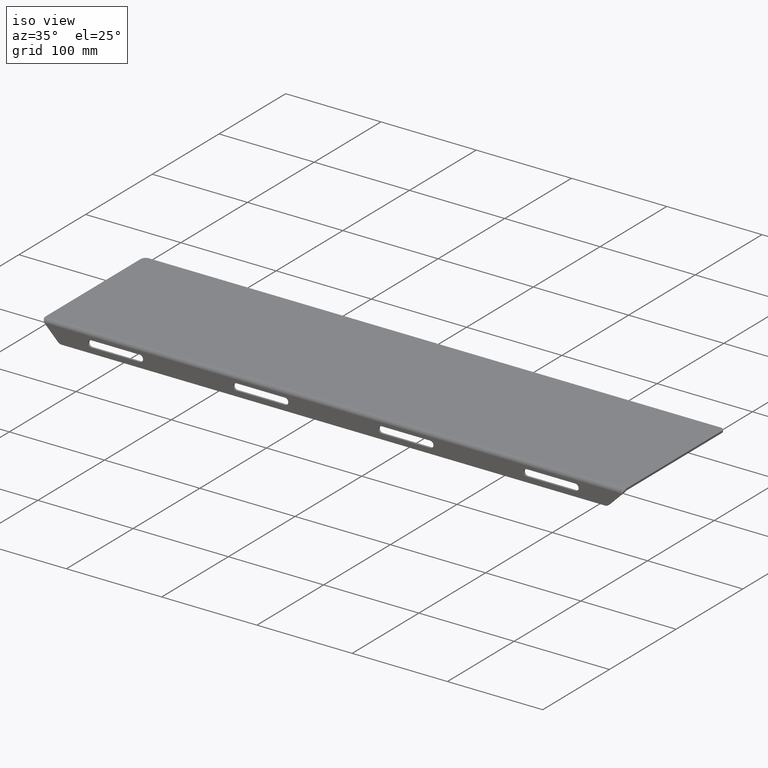
[diagram: clean part render]
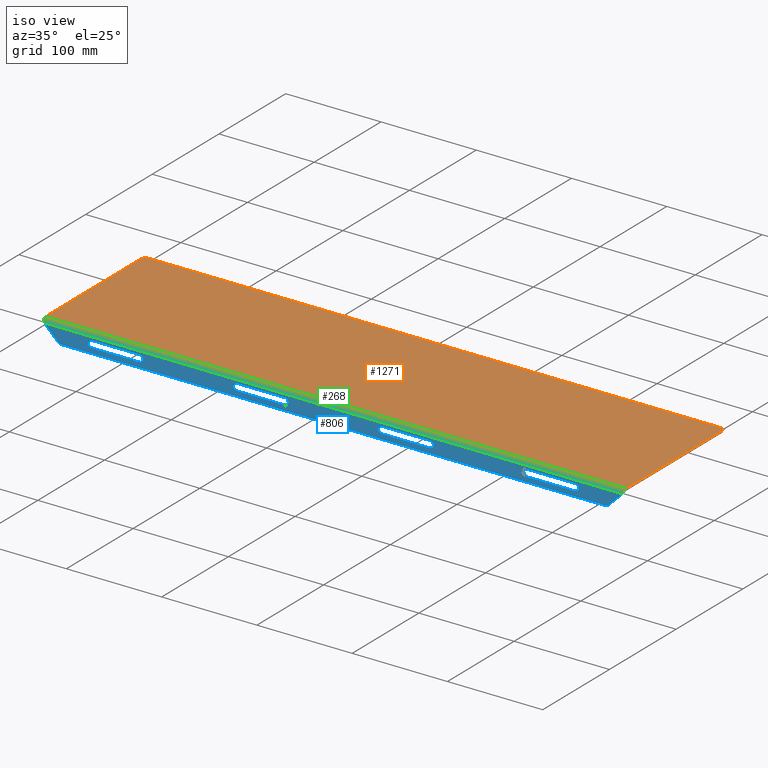
[diagram: same view with three faces highlighted in distinct colors, each labeled with its STEP entity id]
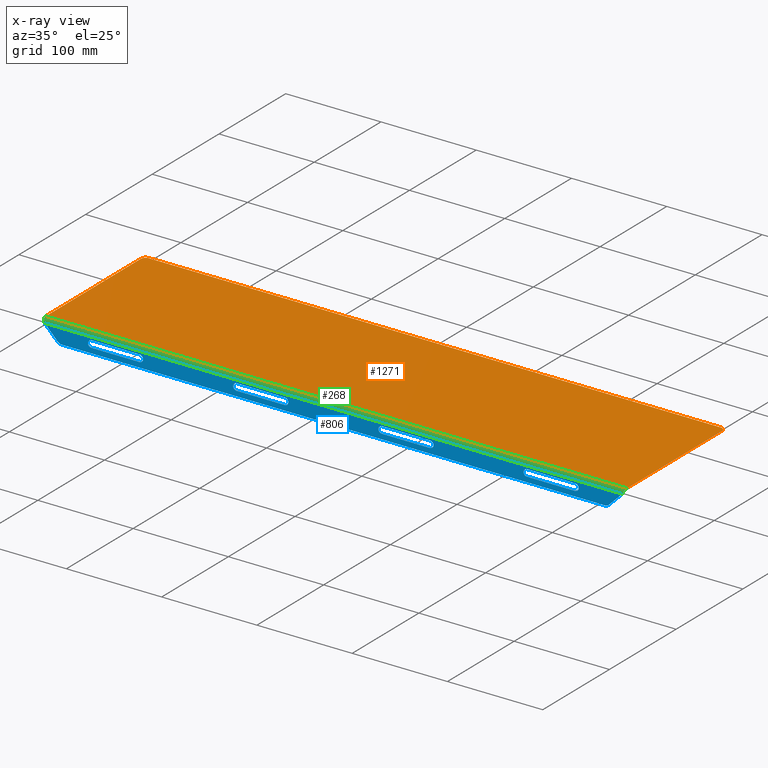
[diagram: x-ray of the same camera — body ghosted, the three highlighted faces saturated]
A machine part, iso view with three faces highlighted in distinct colors.
The next image is the same camera in x-ray (body ghosted, the three faces saturated) — at least one of them is partly hidden behind the body in this view.
Their STEP definitions:

[orange] entity #1271 — the highlighted planar face has unit normal (0, 0, -1).
#31 = VERTEX_POINT ( 'NONE', #153 ) ;
#44 = EDGE_CURVE ( 'NONE', #550, #31, #619, .T. ) ;
#50 = DIRECTION ( 'NONE',  ( -1.000000000000000000, -0.000000000000000000, -0.000000000000000000 ) ) ;
#72 = EDGE_CURVE ( 'NONE', #31, #744, #1035, .T. ) ;
#81 = FACE_OUTER_BOUND ( 'NONE', #318, .T. ) ;
#89 = CARTESIAN_POINT ( 'NONE',  ( -72.96811685823827531, 258.4215033607173382, 467.0621721913454962 ) ) ;
#153 = CARTESIAN_POINT ( 'NONE',  ( -67.96811685823823268, 406.4215033607170540, 467.0621721913454962 ) ) ;
#232 = AXIS2_PLACEMENT_3D ( 'NONE', #934, #1267, #275 ) ;
#253 = EDGE_CURVE ( 'NONE', #623, #939, #790, .T. ) ;
#260 = AXIS2_PLACEMENT_3D ( 'NONE', #379, #911, #485 ) ;
#275 = DIRECTION ( 'NONE',  ( 1.000000000000000000, 0.000000000000000000, 0.000000000000000000 ) ) ;
#281 = CIRCLE ( 'NONE', #232, 5.000000000000004441 ) ;
#296 = EDGE_CURVE ( 'NONE', #1415, #623, #813, .T. ) ;
#314 = EDGE_CURVE ( 'NONE', #939, #550, #690, .T. ) ;
#318 = EDGE_LOOP ( 'NONE', ( #533, #865, #784, #1159, #766, #1387 ) ) ;
#325 = EDGE_CURVE ( 'NONE', #744, #1415, #281, .T. ) ;
#337 = CARTESIAN_POINT ( 'NONE',  ( 536.8318831417617503, 254.4215033607171108, 467.0621721913454962 ) ) ;
#378 = DIRECTION ( 'NONE',  ( -0.000000000000000000, 1.000000000000000000, -0.000000000000000000 ) ) ;
#379 = CARTESIAN_POINT ( 'NONE',  ( -67.96811685823826110, 401.4215033607169971, 467.0621721913454962 ) ) ;
#423 = CARTESIAN_POINT ( 'NONE',  ( 537.0318831417617957, 258.4215033607173382, 467.0621721913454962 ) ) ;
#442 = VECTOR ( 'NONE', #796, 1000.000000000000000 ) ;
#477 = CARTESIAN_POINT ( 'NONE',  ( 536.8318831417617503, 258.4215033607171108, 467.0621721913454962 ) ) ;
#485 = DIRECTION ( 'NONE',  ( -1.000000000000000000, 0.000000000000000000, 0.000000000000000000 ) ) ;
#533 = ORIENTED_EDGE ( 'NONE', *, *, #253, .F. ) ;
#536 = CARTESIAN_POINT ( 'NONE',  ( -72.96811685823827531, 401.4215033607169971, 467.0621721913454962 ) ) ;
#550 = VERTEX_POINT ( 'NONE', #536 ) ;
#619 = CIRCLE ( 'NONE', #260, 5.000000000000004441 ) ;
#623 = VERTEX_POINT ( 'NONE', #423 ) ;
#690 = LINE ( 'NONE', #1362, #1136 ) ;
#714 = CARTESIAN_POINT ( 'NONE',  ( -67.96811685823823268, 406.4215033607170540, 467.0621721913454962 ) ) ;
#744 = VERTEX_POINT ( 'NONE', #816 ) ;
#762 = DIRECTION ( 'NONE',  ( 0.000000000000000000, 0.000000000000000000, -1.000000000000000000 ) ) ;
#766 = ORIENTED_EDGE ( 'NONE', *, *, #44, .F. ) ;
#784 = ORIENTED_EDGE ( 'NONE', *, *, #325, .F. ) ;
#789 = CARTESIAN_POINT ( 'NONE',  ( 537.0318831417617957, 401.4215033607169971, 467.0621721913454962 ) ) ;
#790 = LINE ( 'NONE', #477, #1294 ) ;
#796 = DIRECTION ( 'NONE',  ( 0.000000000000000000, -1.000000000000000000, 0.000000000000000000 ) ) ;
#813 = LINE ( 'NONE', #818, #442 ) ;
#816 = CARTESIAN_POINT ( 'NONE',  ( 532.0318831417617957, 406.4215033607170540, 467.0621721913454962 ) ) ;
#818 = CARTESIAN_POINT ( 'NONE',  ( 537.0318831417617957, 401.4215033607169971, 467.0621721913454962 ) ) ;
#865 = ORIENTED_EDGE ( 'NONE', *, *, #296, .F. ) ;
#911 = DIRECTION ( 'NONE',  ( -0.000000000000000000, -0.000000000000000000, -1.000000000000000000 ) ) ;
#934 = CARTESIAN_POINT ( 'NONE',  ( 532.0318831417617957, 401.4215033607169971, 467.0621721913454962 ) ) ;
#939 = VERTEX_POINT ( 'NONE', #89 ) ;
#985 = AXIS2_PLACEMENT_3D ( 'NONE', #337, #762, #1218 ) ;
#1035 = LINE ( 'NONE', #714, #1109 ) ;
#1109 = VECTOR ( 'NONE', #1157, 1000.000000000000000 ) ;
#1136 = VECTOR ( 'NONE', #378, 1000.000000000000000 ) ;
#1157 = DIRECTION ( 'NONE',  ( 1.000000000000000000, 0.000000000000000000, 0.000000000000000000 ) ) ;
#1159 = ORIENTED_EDGE ( 'NONE', *, *, #72, .F. ) ;
#1218 = DIRECTION ( 'NONE',  ( -1.000000000000000000, 0.000000000000000000, -0.000000000000000000 ) ) ;
#1267 = DIRECTION ( 'NONE',  ( -0.000000000000000000, -0.000000000000000000, -1.000000000000000000 ) ) ;
#1271 = ADVANCED_FACE ( 'NONE', ( #81 ), #1290, .F. ) ;
#1290 = PLANE ( 'NONE',  #985 ) ;
#1294 = VECTOR ( 'NONE', #50, 1000.000000000000000 ) ;
#1362 = CARTESIAN_POINT ( 'NONE',  ( -72.96811685823827531, 401.4215033607169971, 467.0621721913454962 ) ) ;
#1387 = ORIENTED_EDGE ( 'NONE', *, *, #314, .F. ) ;
#1415 = VERTEX_POINT ( 'NONE', #789 ) ;

[blue] entity #806 — the highlighted planar face has unit normal (-0, 1, 0).
#16 = DIRECTION ( 'NONE',  ( 0.000000000000000000, -1.000000000000000000, -0.000000000000000000 ) ) ;
#18 = VERTEX_POINT ( 'NONE', #1263 ) ;
#20 = DIRECTION ( 'NONE',  ( -1.000000000000000000, 0.000000000000000000, 0.000000000000000000 ) ) ;
#23 = CARTESIAN_POINT ( 'NONE',  ( -53.40415582755922230, 254.4215033607171108, 452.0621721913454962 ) ) ;
#24 = ORIENTED_EDGE ( 'NONE', *, *, #65, .F. ) ;
#27 = DIRECTION ( 'NONE',  ( 2.379049338482476317E-14, 0.000000000000000000, 1.000000000000000000 ) ) ;
#35 = PLANE ( 'NONE',  #968 ) ;
#37 = CIRCLE ( 'NONE', #965, 3.500000000000003109 ) ;
#38 = VECTOR ( 'NONE', #273, 1000.000000000000000 ) ;
#48 = DIRECTION ( 'NONE',  ( 0.000000000000000000, -1.000000000000000000, -0.000000000000000000 ) ) ;
#61 = VERTEX_POINT ( 'NONE', #814 ) ;
#65 = EDGE_CURVE ( 'NONE', #659, #944, #276, .T. ) ;
#70 = ORIENTED_EDGE ( 'NONE', *, *, #1287, .F. ) ;
#74 = CARTESIAN_POINT ( 'NONE',  ( 28.83188314176168987, 254.4215033607171108, 452.5621721913454962 ) ) ;
#78 = VECTOR ( 'NONE', #360, 1000.000000000000000 ) ;
#80 = CARTESIAN_POINT ( 'NONE',  ( 333.6318831417617616, 254.4215033607171108, 452.5621721913454962 ) ) ;
#93 = AXIS2_PLACEMENT_3D ( 'NONE', #306, #844, #1276 ) ;
#95 = AXIS2_PLACEMENT_3D ( 'NONE', #680, #139, #27 ) ;
#105 = ORIENTED_EDGE ( 'NONE', *, *, #1190, .F. ) ;
#117 = ORIENTED_EDGE ( 'NONE', *, *, #713, .F. ) ;
#122 = CARTESIAN_POINT ( 'NONE',  ( 435.2318831417617844, 254.4215033607171108, 459.5621721913454962 ) ) ;
#135 = CARTESIAN_POINT ( 'NONE',  ( 535.2428591232272765, 254.4215033607171108, 462.7660413916245830 ) ) ;
#139 = DIRECTION ( 'NONE',  ( 0.000000000000000000, -1.000000000000000000, -0.000000000000000000 ) ) ;
#142 = FACE_BOUND ( 'NONE', #358, .T. ) ;
#150 = CARTESIAN_POINT ( 'NONE',  ( 130.4318831417616877, 254.4215033607171108, 452.5621721913454962 ) ) ;
#156 = DIRECTION ( 'NONE',  ( 0.000000000000000000, -1.000000000000000000, -0.000000000000000000 ) ) ;
#158 = VERTEX_POINT ( 'NONE', #1277 ) ;
#161 = CARTESIAN_POINT ( 'NONE',  ( 130.4318831417616877, 254.4215033607171108, 459.5621721913454962 ) ) ;
#172 = CARTESIAN_POINT ( 'NONE',  ( 130.4318831417616877, 254.4215033607171108, 456.0621721913454962 ) ) ;
#179 = CARTESIAN_POINT ( 'NONE',  ( 333.6318831417617616, 254.4215033607171108, 456.0621721913454962 ) ) ;
#190 = CIRCLE ( 'NONE', #1413, 3.500000000000003109 ) ;
#193 = CARTESIAN_POINT ( 'NONE',  ( 282.8318831417618071, 254.4215033607171108, 452.5621721913454962 ) ) ;
#199 = EDGE_CURVE ( 'NONE', #1200, #433, #1285, .T. ) ;
#202 = ORIENTED_EDGE ( 'NONE', *, *, #1069, .F. ) ;
#220 = VERTEX_POINT ( 'NONE', #622 ) ;
#252 = B_SPLINE_CURVE_WITH_KNOTS ( 'NONE', 3,
 ( #451, #1335, #341, #778 ),
 .UNSPECIFIED., .F., .F.,
 ( 4, 4 ),
 ( 0.000000000000000000, 0.0003310733937462970481 ),
 .UNSPECIFIED. ) ;
#255 = LINE ( 'NONE', #1023, #734 ) ;
#258 = LINE ( 'NONE', #490, #38 ) ;
#264 = EDGE_LOOP ( 'NONE', ( #756, #1006, #70, #1079, #920, #1358, #637, #1350 ) ) ;
#266 = CARTESIAN_POINT ( 'NONE',  ( 536.8318831417617503, 254.4215033607171108, 467.0621721913454962 ) ) ;
#272 = CARTESIAN_POINT ( 'NONE',  ( 486.0318831417617389, 254.4215033607171108, 452.5621721913454962 ) ) ;
#273 = DIRECTION ( 'NONE',  ( -1.000000000000000000, 0.000000000000000000, 0.000000000000000000 ) ) ;
#276 = LINE ( 'NONE', #161, #929 ) ;
#277 = VERTEX_POINT ( 'NONE', #497 ) ;
#278 = CARTESIAN_POINT ( 'NONE',  ( 435.2318831417617844, 254.4215033607171108, 459.5621721913454962 ) ) ;
#298 = DIRECTION ( 'NONE',  ( 0.7071067811865501263, -0.000000000000000000, 0.7071067811865450192 ) ) ;
#299 = AXIS2_PLACEMENT_3D ( 'NONE', #172, #16, #998 ) ;
#301 = ORIENTED_EDGE ( 'NONE', *, *, #654, .F. ) ;
#306 = CARTESIAN_POINT ( 'NONE',  ( -21.96811685823831084, 254.4215033607171108, 456.0621721913454962 ) ) ;
#313 = CARTESIAN_POINT ( 'NONE',  ( 282.8318831417618071, 254.4215033607171108, 452.5621721913454962 ) ) ;
#327 = CIRCLE ( 'NONE', #1137, 3.500000000000003109 ) ;
#330 = CARTESIAN_POINT ( 'NONE',  ( -21.96811685823831084, 254.4215033607171108, 452.5621721913454962 ) ) ;
#333 = ORIENTED_EDGE ( 'NONE', *, *, #199, .F. ) ;
#341 = CARTESIAN_POINT ( 'NONE',  ( -71.22838672992895681, 254.4215033607170540, 462.8647781930068277 ) ) ;
#358 = EDGE_LOOP ( 'NONE', ( #333, #960, #1087, #1341 ) ) ;
#360 = DIRECTION ( 'NONE',  ( 1.000000000000000000, 0.000000000000000000, -1.707404996040164512E-16 ) ) ;
#364 = VERTEX_POINT ( 'NONE', #1074 ) ;
#372 = CARTESIAN_POINT ( 'NONE',  ( 535.3416083976596838, 254.4215033607169971, 462.9634343157423473 ) ) ;
#376 = VECTOR ( 'NONE', #298, 1000.000000000000114 ) ;
#392 = CARTESIAN_POINT ( 'NONE',  ( 435.2318831417617844, 254.4215033607171108, 452.5621721913454962 ) ) ;
#393 = CIRCLE ( 'NONE', #963, 5.000000000000004441 ) ;
#397 = EDGE_CURVE ( 'NONE', #433, #364, #37, .T. ) ;
#398 = VECTOR ( 'NONE', #585, 1000.000000000000000 ) ;
#411 = EDGE_CURVE ( 'NONE', #1421, #792, #501, .T. ) ;
#417 = ORIENTED_EDGE ( 'NONE', *, *, #563, .F. ) ;
#429 = CARTESIAN_POINT ( 'NONE',  ( 486.0318831417617389, 254.4215033607171108, 456.0621721913454962 ) ) ;
#433 = VERTEX_POINT ( 'NONE', #80 ) ;
#451 = CARTESIAN_POINT ( 'NONE',  ( -71.32713385261324390, 254.4215033607171108, 463.0621721913454962 ) ) ;
#453 = DIRECTION ( 'NONE',  ( -1.000000000000000000, -0.000000000000000000, -0.000000000000000000 ) ) ;
#455 = DIRECTION ( 'NONE',  ( 2.636779683484744575E-14, 0.000000000000000000, 1.000000000000000000 ) ) ;
#467 = CARTESIAN_POINT ( 'NONE',  ( -56.93968973349200269, 254.4215033607171108, 448.5266382854127301 ) ) ;
#486 = EDGE_CURVE ( 'NONE', #277, #220, #1188, .T. ) ;
#490 = CARTESIAN_POINT ( 'NONE',  ( -21.96811685823831084, 254.4215033607171108, 459.5621721913454962 ) ) ;
#496 = CARTESIAN_POINT ( 'NONE',  ( -71.17909283970369927, 254.4215033607169971, 462.7660413916244693 ) ) ;
#497 = CARTESIAN_POINT ( 'NONE',  ( 535.3909001361367928, 254.4215033607169971, 463.0621721913454962 ) ) ;
#501 = LINE ( 'NONE', #1289, #376 ) ;
#511 = VECTOR ( 'NONE', #20, 1000.000000000000000 ) ;
#513 = CARTESIAN_POINT ( 'NONE',  ( 282.8318831417618071, 254.4215033607171108, 459.5621721913454962 ) ) ;
#526 = CARTESIAN_POINT ( 'NONE',  ( 536.8318831417617503, 254.4215033607171108, 463.0621721913454962 ) ) ;
#532 = CIRCLE ( 'NONE', #95, 3.500000000000003109 ) ;
#537 = CARTESIAN_POINT ( 'NONE',  ( 536.8318831417617503, 254.4215033607171108, 447.0621721913454962 ) ) ;
#542 = ORIENTED_EDGE ( 'NONE', *, *, #982, .F. ) ;
#557 = CARTESIAN_POINT ( 'NONE',  ( 181.2318831417616991, 254.4215033607171108, 452.5621721913454962 ) ) ;
#563 = EDGE_CURVE ( 'NONE', #61, #1187, #975, .T. ) ;
#579 = LINE ( 'NONE', #1130, #398 ) ;
#585 = DIRECTION ( 'NONE',  ( -1.000000000000000000, -0.000000000000000000, 1.878145495644182812E-16 ) ) ;
#586 = CARTESIAN_POINT ( 'NONE',  ( 230.6783297511706508, 254.4215033607171108, 160.9086188007521798 ) ) ;
#590 = CARTESIAN_POINT ( 'NONE',  ( 486.0318831417617389, 254.4215033607171108, 459.5621721913454962 ) ) ;
#595 = DIRECTION ( 'NONE',  ( -1.000000000000000000, -0.000000000000000000, 1.878145495644180839E-16 ) ) ;
#600 = VECTOR ( 'NONE', #1345, 1000.000000000000114 ) ;
#606 = DIRECTION ( 'NONE',  ( -1.000000000000000000, -0.000000000000000000, -0.000000000000000000 ) ) ;
#610 = EDGE_CURVE ( 'NONE', #1032, #1421, #786, .T. ) ;
#614 = DIRECTION ( 'NONE',  ( 1.000000000000000000, 0.000000000000000000, -1.707404996040166237E-16 ) ) ;
#622 = CARTESIAN_POINT ( 'NONE',  ( -71.32713385261324390, 254.4215033607171108, 463.0621721913454962 ) ) ;
#637 = ORIENTED_EDGE ( 'NONE', *, *, #486, .T. ) ;
#648 = ORIENTED_EDGE ( 'NONE', *, *, #720, .F. ) ;
#654 = EDGE_CURVE ( 'NONE', #1091, #1077, #327, .T. ) ;
#659 = VERTEX_POINT ( 'NONE', #664 ) ;
#664 = CARTESIAN_POINT ( 'NONE',  ( 181.2318831417616991, 254.4215033607171108, 459.5621721913454962 ) ) ;
#666 = EDGE_CURVE ( 'NONE', #1077, #855, #1107, .T. ) ;
#680 = CARTESIAN_POINT ( 'NONE',  ( 28.83188314176168987, 254.4215033607171108, 456.0621721913454962 ) ) ;
#689 = LINE ( 'NONE', #150, #78 ) ;
#691 = AXIS2_PLACEMENT_3D ( 'NONE', #1258, #48, #702 ) ;
#693 = VECTOR ( 'NONE', #980, 1000.000000000000000 ) ;
#701 = ORIENTED_EDGE ( 'NONE', *, *, #666, .F. ) ;
#702 = DIRECTION ( 'NONE',  ( 0.000000000000000000, 0.000000000000000000, 1.000000000000000000 ) ) ;
#704 = DIRECTION ( 'NONE',  ( 0.000000000000000000, -0.000000000000000000, 1.000000000000000000 ) ) ;
#709 = FACE_BOUND ( 'NONE', #1165, .T. ) ;
#713 = EDGE_CURVE ( 'NONE', #18, #1310, #258, .T. ) ;
#720 = EDGE_CURVE ( 'NONE', #1325, #928, #689, .T. ) ;
#726 = EDGE_CURVE ( 'NONE', #871, #1007, #795, .T. ) ;
#734 = VECTOR ( 'NONE', #1114, 1000.000000000000000 ) ;
#752 = DIRECTION ( 'NONE',  ( 0.000000000000000000, -1.000000000000000000, -0.000000000000000000 ) ) ;
#756 = ORIENTED_EDGE ( 'NONE', *, *, #726, .T. ) ;
#761 = DIRECTION ( 'NONE',  ( 0.000000000000000000, -1.000000000000000000, -0.000000000000000000 ) ) ;
#778 = CARTESIAN_POINT ( 'NONE',  ( -71.17909283970369927, 254.4215033607169971, 462.7660413916244693 ) ) ;
#786 = CIRCLE ( 'NONE', #906, 5.000000000000004441 ) ;
#792 = VERTEX_POINT ( 'NONE', #135 ) ;
#793 = EDGE_LOOP ( 'NONE', ( #1127, #202, #701, #301 ) ) ;
#795 = LINE ( 'NONE', #586, #600 ) ;
#806 = ADVANCED_FACE ( 'NONE', ( #142, #709, #922, #1010, #1360 ), #35, .F. ) ;
#807 = EDGE_LOOP ( 'NONE', ( #417, #105, #117, #542 ) ) ;
#809 = CARTESIAN_POINT ( 'NONE',  ( 535.2428591232272765, 254.4215033607171108, 462.7660413916245830 ) ) ;
#814 = CARTESIAN_POINT ( 'NONE',  ( -21.96811685823831084, 254.4215033607171108, 452.5621721913454962 ) ) ;
#817 = EDGE_CURVE ( 'NONE', #873, #1200, #190, .T. ) ;
#843 = DIRECTION ( 'NONE',  ( 0.000000000000000000, 0.000000000000000000, 1.000000000000000000 ) ) ;
#844 = DIRECTION ( 'NONE',  ( 0.000000000000000000, -1.000000000000000000, -0.000000000000000000 ) ) ;
#855 = VERTEX_POINT ( 'NONE', #278 ) ;
#856 = VERTEX_POINT ( 'NONE', #392 ) ;
#870 = ORIENTED_EDGE ( 'NONE', *, *, #1100, .F. ) ;
#871 = VERTEX_POINT ( 'NONE', #496 ) ;
#873 = VERTEX_POINT ( 'NONE', #513 ) ;
#876 = CIRCLE ( 'NONE', #93, 3.500000000000003109 ) ;
#885 = CARTESIAN_POINT ( 'NONE',  ( 517.4679221110826575, 254.4215033607171108, 452.0621721913454962 ) ) ;
#906 = AXIS2_PLACEMENT_3D ( 'NONE', #885, #752, #1212 ) ;
#920 = ORIENTED_EDGE ( 'NONE', *, *, #411, .T. ) ;
#922 = FACE_BOUND ( 'NONE', #793, .T. ) ;
#928 = VERTEX_POINT ( 'NONE', #557 ) ;
#929 = VECTOR ( 'NONE', #595, 1000.000000000000000 ) ;
#930 = CARTESIAN_POINT ( 'NONE',  ( 535.2921530134525483, 254.4215033607172245, 462.8647781930069982 ) ) ;
#936 = EDGE_CURVE ( 'NONE', #220, #871, #252, .T. ) ;
#944 = VERTEX_POINT ( 'NONE', #994 ) ;
#945 = AXIS2_PLACEMENT_3D ( 'NONE', #1189, #1197, #1307 ) ;
#960 = ORIENTED_EDGE ( 'NONE', *, *, #817, .F. ) ;
#963 = AXIS2_PLACEMENT_3D ( 'NONE', #23, #1118, #455 ) ;
#965 = AXIS2_PLACEMENT_3D ( 'NONE', #179, #1407, #843 ) ;
#968 = AXIS2_PLACEMENT_3D ( 'NONE', #266, #1146, #704 ) ;
#975 = LINE ( 'NONE', #330, #693 ) ;
#980 = DIRECTION ( 'NONE',  ( 1.000000000000000000, 0.000000000000000000, 0.000000000000000000 ) ) ;
#981 = LINE ( 'NONE', #537, #1410 ) ;
#982 = EDGE_CURVE ( 'NONE', #1187, #18, #532, .T. ) ;
#994 = CARTESIAN_POINT ( 'NONE',  ( 130.4318831417616877, 254.4215033607171108, 459.5621721913454962 ) ) ;
#998 = DIRECTION ( 'NONE',  ( 0.000000000000000000, 0.000000000000000000, 1.000000000000000000 ) ) ;
#1006 = ORIENTED_EDGE ( 'NONE', *, *, #1128, .T. ) ;
#1007 = VERTEX_POINT ( 'NONE', #467 ) ;
#1010 = FACE_BOUND ( 'NONE', #807, .T. ) ;
#1018 = CARTESIAN_POINT ( 'NONE',  ( 282.8318831417618071, 254.4215033607171108, 456.0621721913454962 ) ) ;
#1023 = CARTESIAN_POINT ( 'NONE',  ( 435.2318831417617844, 254.4215033607171108, 452.5621721913454962 ) ) ;
#1027 = EDGE_CURVE ( 'NONE', #364, #873, #579, .T. ) ;
#1032 = VERTEX_POINT ( 'NONE', #1242 ) ;
#1034 = CIRCLE ( 'NONE', #299, 3.500000000000003109 ) ;
#1052 = EDGE_CURVE ( 'NONE', #856, #1091, #255, .T. ) ;
#1060 = EDGE_CURVE ( 'NONE', #277, #792, #1381, .T. ) ;
#1069 = EDGE_CURVE ( 'NONE', #855, #856, #1318, .T. ) ;
#1074 = CARTESIAN_POINT ( 'NONE',  ( 333.6318831417617616, 254.4215033607171108, 459.5621721913454962 ) ) ;
#1077 = VERTEX_POINT ( 'NONE', #590 ) ;
#1079 = ORIENTED_EDGE ( 'NONE', *, *, #610, .T. ) ;
#1081 = VECTOR ( 'NONE', #606, 1000.000000000000000 ) ;
#1084 = CARTESIAN_POINT ( 'NONE',  ( -21.96811685823831084, 254.4215033607171108, 459.5621721913454962 ) ) ;
#1087 = ORIENTED_EDGE ( 'NONE', *, *, #1027, .F. ) ;
#1091 = VERTEX_POINT ( 'NONE', #272 ) ;
#1092 = DIRECTION ( 'NONE',  ( 0.000000000000000000, 0.000000000000000000, 1.000000000000000000 ) ) ;
#1100 = EDGE_CURVE ( 'NONE', #944, #1325, #1034, .T. ) ;
#1107 = LINE ( 'NONE', #122, #511 ) ;
#1114 = DIRECTION ( 'NONE',  ( 1.000000000000000000, 0.000000000000000000, 0.000000000000000000 ) ) ;
#1118 = DIRECTION ( 'NONE',  ( 0.000000000000000000, -1.000000000000000000, -0.000000000000000000 ) ) ;
#1127 = ORIENTED_EDGE ( 'NONE', *, *, #1052, .F. ) ;
#1128 = EDGE_CURVE ( 'NONE', #1007, #158, #393, .T. ) ;
#1130 = CARTESIAN_POINT ( 'NONE',  ( 282.8318831417618071, 254.4215033607171108, 459.5621721913454962 ) ) ;
#1137 = AXIS2_PLACEMENT_3D ( 'NONE', #429, #761, #1092 ) ;
#1146 = DIRECTION ( 'NONE',  ( -0.000000000000000000, 1.000000000000000000, 0.000000000000000000 ) ) ;
#1153 = DIRECTION ( 'NONE',  ( 0.000000000000000000, 0.000000000000000000, 1.000000000000000000 ) ) ;
#1165 = EDGE_LOOP ( 'NONE', ( #648, #870, #24, #1264 ) ) ;
#1187 = VERTEX_POINT ( 'NONE', #74 ) ;
#1188 = LINE ( 'NONE', #526, #1081 ) ;
#1189 = CARTESIAN_POINT ( 'NONE',  ( 181.2318831417616991, 254.4215033607171108, 456.0621721913454962 ) ) ;
#1190 = EDGE_CURVE ( 'NONE', #1310, #61, #876, .T. ) ;
#1197 = DIRECTION ( 'NONE',  ( 0.000000000000000000, -1.000000000000000000, -0.000000000000000000 ) ) ;
#1200 = VERTEX_POINT ( 'NONE', #313 ) ;
#1212 = DIRECTION ( 'NONE',  ( 0.000000000000000000, 0.000000000000000000, 1.000000000000000000 ) ) ;
#1213 = CARTESIAN_POINT ( 'NONE',  ( 130.4318831417616877, 254.4215033607171108, 452.5621721913454962 ) ) ;
#1226 = VECTOR ( 'NONE', #614, 1000.000000000000000 ) ;
#1235 = CARTESIAN_POINT ( 'NONE',  ( 521.0034560170153100, 254.4215033607171108, 448.5266382854127301 ) ) ;
#1242 = CARTESIAN_POINT ( 'NONE',  ( 517.4679221110826575, 254.4215033607171108, 447.0621721913454962 ) ) ;
#1247 = EDGE_CURVE ( 'NONE', #928, #659, #1343, .T. ) ;
#1258 = CARTESIAN_POINT ( 'NONE',  ( 435.2318831417617844, 254.4215033607171108, 456.0621721913454962 ) ) ;
#1263 = CARTESIAN_POINT ( 'NONE',  ( 28.83188314176160461, 254.4215033607171108, 459.5621721913454962 ) ) ;
#1264 = ORIENTED_EDGE ( 'NONE', *, *, #1247, .F. ) ;
#1276 = DIRECTION ( 'NONE',  ( 0.000000000000000000, 0.000000000000000000, 1.000000000000000000 ) ) ;
#1277 = CARTESIAN_POINT ( 'NONE',  ( -53.40415582755897361, 254.4215033607171108, 447.0621721913454962 ) ) ;
#1285 = LINE ( 'NONE', #193, #1226 ) ;
#1287 = EDGE_CURVE ( 'NONE', #1032, #158, #981, .T. ) ;
#1289 = CARTESIAN_POINT ( 'NONE',  ( 538.1854365323549700, 254.4215033607171108, 465.7086188007522196 ) ) ;
#1307 = DIRECTION ( 'NONE',  ( 0.000000000000000000, 0.000000000000000000, 1.000000000000000000 ) ) ;
#1310 = VERTEX_POINT ( 'NONE', #1084 ) ;
#1318 = CIRCLE ( 'NONE', #691, 3.500000000000003109 ) ;
#1325 = VERTEX_POINT ( 'NONE', #1213 ) ;
#1335 = CARTESIAN_POINT ( 'NONE',  ( -71.27784211413610649, 254.4215033607171108, 462.9634343157422904 ) ) ;
#1341 = ORIENTED_EDGE ( 'NONE', *, *, #397, .F. ) ;
#1343 = CIRCLE ( 'NONE', #945, 3.500000000000003109 ) ;
#1345 = DIRECTION ( 'NONE',  ( 0.7071067811865501263, 0.000000000000000000, -0.7071067811865450192 ) ) ;
#1350 = ORIENTED_EDGE ( 'NONE', *, *, #936, .T. ) ;
#1358 = ORIENTED_EDGE ( 'NONE', *, *, #1060, .F. ) ;
#1360 = FACE_OUTER_BOUND ( 'NONE', #264, .T. ) ;
#1367 = CARTESIAN_POINT ( 'NONE',  ( 535.3909001361367928, 254.4215033607169971, 463.0621721913454962 ) ) ;
#1381 = B_SPLINE_CURVE_WITH_KNOTS ( 'NONE', 3,
 ( #1367, #372, #930, #809 ),
 .UNSPECIFIED., .F., .F.,
 ( 4, 4 ),
 ( 0.000000000000000000, 0.0003310733937461542587 ),
 .UNSPECIFIED. ) ;
#1407 = DIRECTION ( 'NONE',  ( 0.000000000000000000, -1.000000000000000000, -0.000000000000000000 ) ) ;
#1410 = VECTOR ( 'NONE', #453, 1000.000000000000000 ) ;
#1413 = AXIS2_PLACEMENT_3D ( 'NONE', #1018, #156, #1153 ) ;
#1421 = VERTEX_POINT ( 'NONE', #1235 ) ;

[green] entity #268 — the highlighted cylindrical surface (edge-blend (fillet) strip) has radius 4 mm, axis along (-1, -0, -0).
#26 = EDGE_CURVE ( 'NONE', #277, #1043, #380, .T. ) ;
#39 = DIRECTION ( 'NONE',  ( 1.000000000000000000, 0.000000000000000000, 0.000000000000000000 ) ) ;
#50 = DIRECTION ( 'NONE',  ( -1.000000000000000000, -0.000000000000000000, -0.000000000000000000 ) ) ;
#51 = ORIENTED_EDGE ( 'NONE', *, *, #304, .T. ) ;
#56 = EDGE_LOOP ( 'NONE', ( #391, #323, #751, #51, #692, #577 ) ) ;
#63 = DIRECTION ( 'NONE',  ( 0.000000000000000000, 0.000000000000000000, 1.000000000000000000 ) ) ;
#66 = DIRECTION ( 'NONE',  ( 0.000000000000000000, 0.000000000000000000, 1.000000000000000000 ) ) ;
#89 = CARTESIAN_POINT ( 'NONE',  ( -72.96811685823827531, 258.4215033607173382, 467.0621721913454962 ) ) ;
#152 = CARTESIAN_POINT ( 'NONE',  ( -72.96811685823823268, 258.4215033607171108, 463.0621721913454962 ) ) ;
#180 = CARTESIAN_POINT ( 'NONE',  ( -72.39608725033707515, 255.0471278642584139, 465.2354674759923228 ) ) ;
#220 = VERTEX_POINT ( 'NONE', #622 ) ;
#240 = VERTEX_POINT ( 'NONE', #845 ) ;
#253 = EDGE_CURVE ( 'NONE', #623, #939, #790, .T. ) ;
#261 = AXIS2_PLACEMENT_3D ( 'NONE', #1065, #1288, #66 ) ;
#263 = CARTESIAN_POINT ( 'NONE',  ( 535.5534248835224389, 254.4215033607170540, 463.3877307694280034 ) ) ;
#268 = ADVANCED_FACE ( 'NONE', ( #684 ), #1124, .T. ) ;
#270 = CARTESIAN_POINT ( 'NONE',  ( 536.8358550942652982, 255.7031739605614575, 466.0166373329383873 ) ) ;
#277 = VERTEX_POINT ( 'NONE', #497 ) ;
#293 = CARTESIAN_POINT ( 'NONE',  ( -72.11193031072437520, 254.7357187217247372, 464.6510755805850863 ) ) ;
#304 = EDGE_CURVE ( 'NONE', #939, #240, #828, .T. ) ;
#323 = ORIENTED_EDGE ( 'NONE', *, *, #859, .T. ) ;
#361 = DIRECTION ( 'NONE',  ( 0.000000000000000000, 0.000000000000000000, -1.000000000000000000 ) ) ;
#380 = B_SPLINE_CURVE_WITH_KNOTS ( 'NONE', 3,
 ( #1386, #263, #575, #390, #820, #919, #1364, #270, #700, #1151 ),
 .UNSPECIFIED., .F., .F.,
 ( 4, 2, 2, 2, 4 ),
 ( 0.003050664221903882662, 0.004129762518428874846, 0.005208860814953867463, 0.006287959111478860080, 0.007367057408003852698 ),
 .UNSPECIFIED. ) ;
#390 = CARTESIAN_POINT ( 'NONE',  ( 536.0227853864354302, 254.6167571848281170, 464.3385075919372298 ) ) ;
#391 = ORIENTED_EDGE ( 'NONE', *, *, #26, .T. ) ;
#423 = CARTESIAN_POINT ( 'NONE',  ( 537.0318831417617957, 258.4215033607173382, 467.0621721913454962 ) ) ;
#424 = CARTESIAN_POINT ( 'NONE',  ( -71.32713385261324390, 254.4215033607171108, 463.0621721913454962 ) ) ;
#477 = CARTESIAN_POINT ( 'NONE',  ( 536.8318831417617503, 258.4215033607171108, 467.0621721913454962 ) ) ;
#486 = EDGE_CURVE ( 'NONE', #277, #220, #1188, .T. ) ;
#497 = CARTESIAN_POINT ( 'NONE',  ( 535.3909001361367928, 254.4215033607169971, 463.0621721913454962 ) ) ;
#526 = CARTESIAN_POINT ( 'NONE',  ( 536.8318831417617503, 254.4215033607171108, 463.0621721913454962 ) ) ;
#575 = CARTESIAN_POINT ( 'NONE',  ( 535.7127302738973640, 254.4608649082321676, 463.7090636555364540 ) ) ;
#577 = ORIENTED_EDGE ( 'NONE', *, *, #486, .F. ) ;
#606 = DIRECTION ( 'NONE',  ( -1.000000000000000000, -0.000000000000000000, -0.000000000000000000 ) ) ;
#622 = CARTESIAN_POINT ( 'NONE',  ( -71.32713385261324390, 254.4215033607171108, 463.0621721913454962 ) ) ;
#623 = VERTEX_POINT ( 'NONE', #423 ) ;
#684 = FACE_OUTER_BOUND ( 'NONE', #56, .T. ) ;
#692 = ORIENTED_EDGE ( 'NONE', *, *, #1239, .T. ) ;
#700 = CARTESIAN_POINT ( 'NONE',  ( 536.9420239034814131, 255.9659609964254798, 466.2390620820909817 ) ) ;
#716 = AXIS2_PLACEMENT_3D ( 'NONE', #804, #1254, #63 ) ;
#730 = CARTESIAN_POINT ( 'NONE',  ( -71.64896399037388619, 254.4608649082324519, 463.7090636555362835 ) ) ;
#746 = CARTESIAN_POINT ( 'NONE',  ( -71.95901910291216552, 254.6167571848283444, 464.3385075919370593 ) ) ;
#751 = ORIENTED_EDGE ( 'NONE', *, *, #253, .T. ) ;
#790 = LINE ( 'NONE', #477, #1294 ) ;
#804 = CARTESIAN_POINT ( 'NONE',  ( 536.8318831417617503, 258.4215033607171108, 463.0621721913454962 ) ) ;
#820 = CARTESIAN_POINT ( 'NONE',  ( 536.1756965942481656, 254.7357187217251919, 464.6510755805851431 ) ) ;
#828 = CIRCLE ( 'NONE', #1255, 4.000000000000003553 ) ;
#845 = CARTESIAN_POINT ( 'NONE',  ( -72.96811685823828952, 256.2602543601049661, 466.4280305896375012 ) ) ;
#852 = CIRCLE ( 'NONE', #261, 4.000000000000003553 ) ;
#859 = EDGE_CURVE ( 'NONE', #1043, #623, #852, .T. ) ;
#861 = CARTESIAN_POINT ( 'NONE',  ( -72.87825761995786422, 255.9659609964254230, 466.2390620820905838 ) ) ;
#919 = CARTESIAN_POINT ( 'NONE',  ( 536.4598535338608372, 255.0471278642588118, 465.2354674759923796 ) ) ;
#939 = VERTEX_POINT ( 'NONE', #89 ) ;
#1043 = VERTEX_POINT ( 'NONE', #1249 ) ;
#1065 = CARTESIAN_POINT ( 'NONE',  ( 537.0318831417617957, 258.4215033607171108, 463.0621721913454962 ) ) ;
#1075 = CARTESIAN_POINT ( 'NONE',  ( -72.96811685823828952, 256.2602543601049661, 466.4280305896375012 ) ) ;
#1081 = VECTOR ( 'NONE', #606, 1000.000000000000000 ) ;
#1124 = CYLINDRICAL_SURFACE ( 'NONE', #716, 4.000000000000003553 ) ;
#1151 = CARTESIAN_POINT ( 'NONE',  ( 537.0318831417615684, 256.2602543601049092, 466.4280305896375580 ) ) ;
#1174 = CARTESIAN_POINT ( 'NONE',  ( -71.48965859999917427, 254.4215033607172245, 463.3877307694280603 ) ) ;
#1188 = LINE ( 'NONE', #526, #1081 ) ;
#1237 = B_SPLINE_CURVE_WITH_KNOTS ( 'NONE', 3,
 ( #1075, #861, #1408, #1300, #180, #293, #746, #730, #1174, #424 ),
 .UNSPECIFIED., .F., .F.,
 ( 4, 2, 2, 2, 4 ),
 ( 0.004482622571614135708, 0.005562295906639697432, 0.006641969241665260024, 0.007721642576690821748, 0.008801315911716383472 ),
 .UNSPECIFIED. ) ;
#1239 = EDGE_CURVE ( 'NONE', #240, #220, #1237, .T. ) ;
#1249 = CARTESIAN_POINT ( 'NONE',  ( 537.0318831417615684, 256.2602543601049092, 466.4280305896375580 ) ) ;
#1254 = DIRECTION ( 'NONE',  ( -1.000000000000000000, -0.000000000000000000, -0.000000000000000000 ) ) ;
#1255 = AXIS2_PLACEMENT_3D ( 'NONE', #152, #39, #361 ) ;
#1288 = DIRECTION ( 'NONE',  ( -1.000000000000000000, -0.000000000000000000, -0.000000000000000000 ) ) ;
#1294 = VECTOR ( 'NONE', #50, 1000.000000000000000 ) ;
#1300 = CARTESIAN_POINT ( 'NONE',  ( -72.52843909692886371, 255.2389283543636793, 465.5094963075116539 ) ) ;
#1364 = CARTESIAN_POINT ( 'NONE',  ( 536.5922053804523557, 255.2389283543636793, 465.5094963075123928 ) ) ;
#1386 = CARTESIAN_POINT ( 'NONE',  ( 535.3909001361367928, 254.4215033607169971, 463.0621721913454962 ) ) ;
#1408 = CARTESIAN_POINT ( 'NONE',  ( -72.77208881074172098, 255.7031739605614575, 466.0166373329379326 ) ) ;